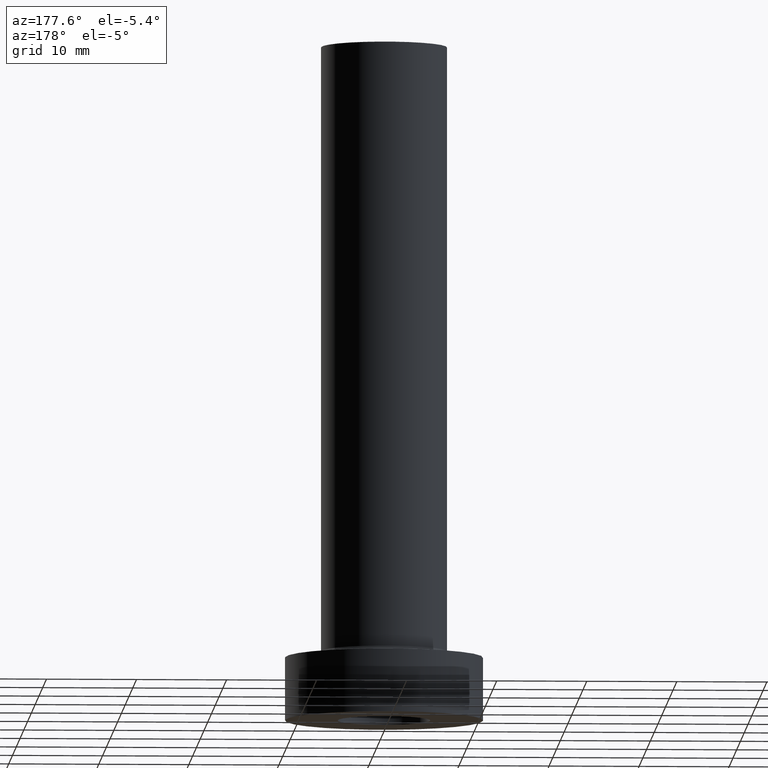
[diagram: clean part render]
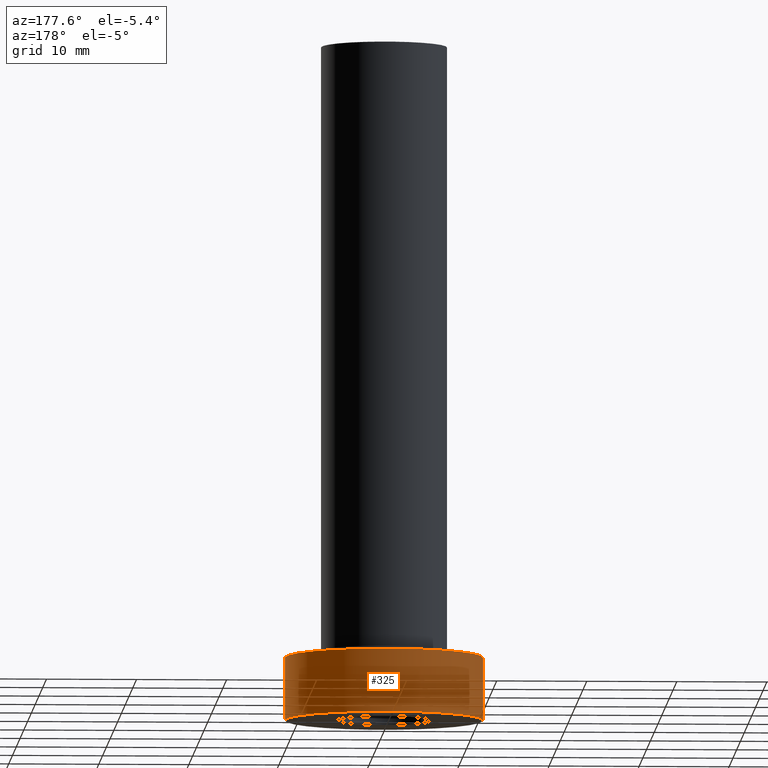
[diagram: same view with one face highlighted and labeled with its STEP entity id]
A machine part, auxiliary view. The second image highlights one B-rep face of the part: STEP entity #325.
In plain terms, the highlighted cylindrical surface (partial cylindrical patch) has radius 11 mm, axis along (-0, -0, -1).
Its self-contained STEP definition (entity closure, byte-faithful):
#5 = VECTOR ( 'NONE', #144, 1000.000000000000000 ) ;
#9 = CARTESIAN_POINT ( 'NONE',  ( -11.00000000000000000, 0.000000000000000000, 7.000000000000000000 ) ) ;
#18 = ORIENTED_EDGE ( 'NONE', *, *, #54, .F. ) ;
#24 = VERTEX_POINT ( 'NONE', #81 ) ;
#35 = CARTESIAN_POINT ( 'NONE',  ( 0.000000000000000000, 0.000000000000000000, 7.000000000000000000 ) ) ;
#54 = EDGE_CURVE ( 'NONE', #390, #24, #260, .T. ) ;
#62 = DIRECTION ( 'NONE',  ( -1.000000000000000000, 0.000000000000000000, 0.000000000000000000 ) ) ;
#77 = CARTESIAN_POINT ( 'NONE',  ( 0.000000000000000000, 0.000000000000000000, 0.000000000000000000 ) ) ;
#81 = CARTESIAN_POINT ( 'NONE',  ( -11.00000000000000000, 0.000000000000000000, 0.000000000000000000 ) ) ;
#89 = AXIS2_PLACEMENT_3D ( 'NONE', #207, #320, #62 ) ;
#96 = CYLINDRICAL_SURFACE ( 'NONE', #89, 11.00000000000000000 ) ;
#101 = EDGE_LOOP ( 'NONE', ( #161, #427, #375, #18 ) ) ;
#118 = EDGE_CURVE ( 'NONE', #170, #247, #333, .T. ) ;
#134 = DIRECTION ( 'NONE',  ( 1.000000000000000000, 0.000000000000000000, 0.000000000000000000 ) ) ;
#144 = DIRECTION ( 'NONE',  ( -0.000000000000000000, -0.000000000000000000, -1.000000000000000000 ) ) ;
#161 = ORIENTED_EDGE ( 'NONE', *, *, #264, .F. ) ;
#170 = VERTEX_POINT ( 'NONE', #403 ) ;
#185 = DIRECTION ( 'NONE',  ( 0.000000000000000000, 0.000000000000000000, 1.000000000000000000 ) ) ;
#207 = CARTESIAN_POINT ( 'NONE',  ( 0.000000000000000000, 0.000000000000000000, 7.000000000000000000 ) ) ;
#232 = AXIS2_PLACEMENT_3D ( 'NONE', #35, #236, #134 ) ;
#236 = DIRECTION ( 'NONE',  ( 0.000000000000000000, 0.000000000000000000, 1.000000000000000000 ) ) ;
#247 = VERTEX_POINT ( 'NONE', #452 ) ;
#254 = DIRECTION ( 'NONE',  ( -0.000000000000000000, -0.000000000000000000, -1.000000000000000000 ) ) ;
#260 = LINE ( 'NONE', #9, #5 ) ;
#264 = EDGE_CURVE ( 'NONE', #170, #390, #267, .T. ) ;
#267 = CIRCLE ( 'NONE', #232, 11.00000000000000000 ) ;
#298 = VECTOR ( 'NONE', #254, 1000.000000000000000 ) ;
#320 = DIRECTION ( 'NONE',  ( -0.000000000000000000, -0.000000000000000000, -1.000000000000000000 ) ) ;
#321 = CARTESIAN_POINT ( 'NONE',  ( 11.00000000000000000, 1.347111479062088405E-15, 7.000000000000000000 ) ) ;
#325 = ADVANCED_FACE ( 'NONE', ( #356 ), #96, .T. ) ;
#333 = LINE ( 'NONE', #321, #298 ) ;
#338 = EDGE_CURVE ( 'NONE', #247, #24, #372, .T. ) ;
#356 = FACE_OUTER_BOUND ( 'NONE', #101, .T. ) ;
#359 = DIRECTION ( 'NONE',  ( 1.000000000000000000, 0.000000000000000000, 0.000000000000000000 ) ) ;
#372 = CIRCLE ( 'NONE', #440, 11.00000000000000000 ) ;
#375 = ORIENTED_EDGE ( 'NONE', *, *, #338, .T. ) ;
#390 = VERTEX_POINT ( 'NONE', #434 ) ;
#403 = CARTESIAN_POINT ( 'NONE',  ( 11.00000000000000000, 1.347111479062088405E-15, 7.000000000000000000 ) ) ;
#427 = ORIENTED_EDGE ( 'NONE', *, *, #118, .T. ) ;
#434 = CARTESIAN_POINT ( 'NONE',  ( -11.00000000000000000, 0.000000000000000000, 7.000000000000000000 ) ) ;
#440 = AXIS2_PLACEMENT_3D ( 'NONE', #77, #185, #359 ) ;
#452 = CARTESIAN_POINT ( 'NONE',  ( 11.00000000000000000, 1.347111479062088405E-15, 0.000000000000000000 ) ) ;